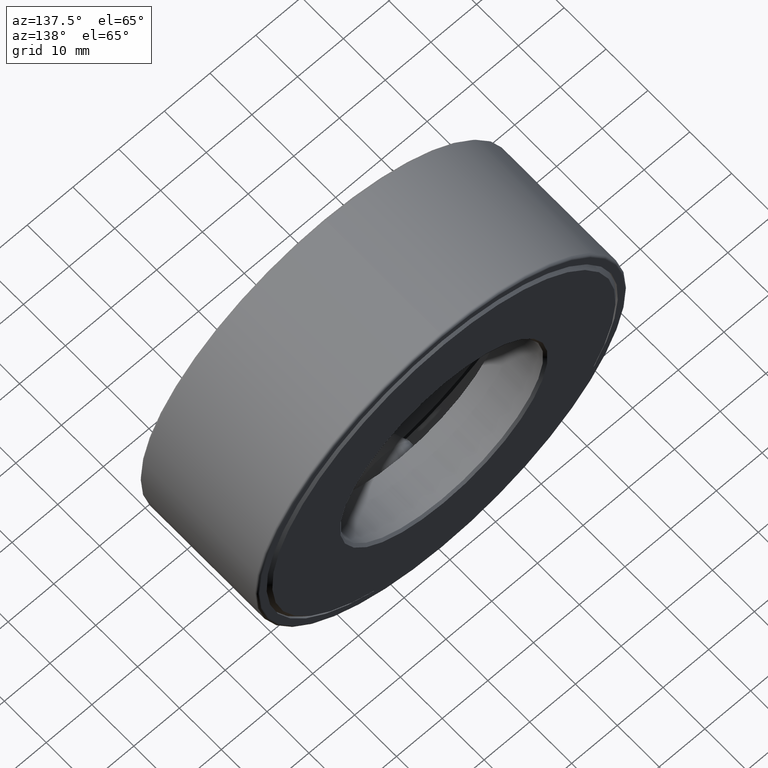
[diagram: clean part render]
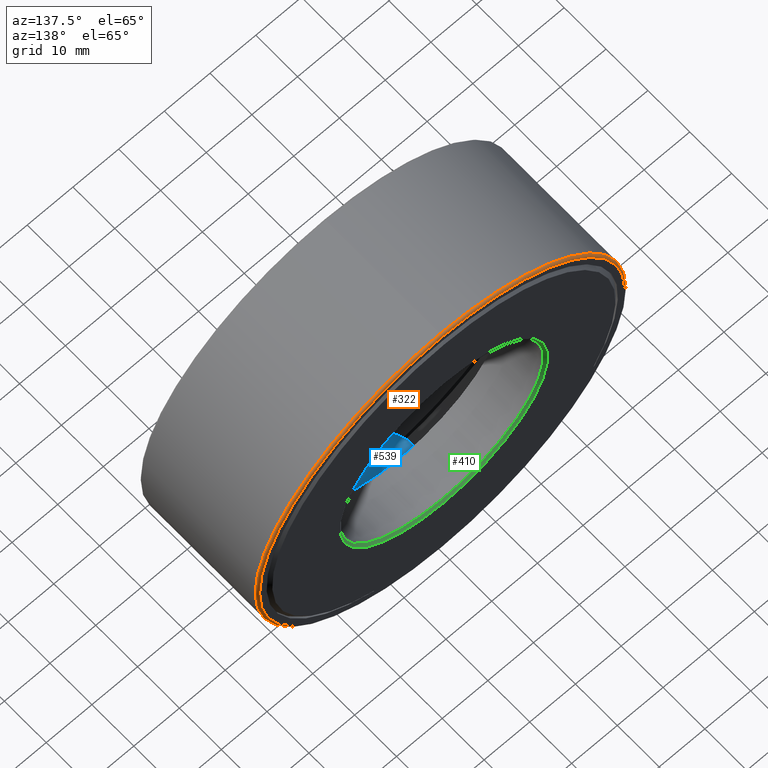
[diagram: same view with three faces highlighted in distinct colors, each labeled with its STEP entity id]
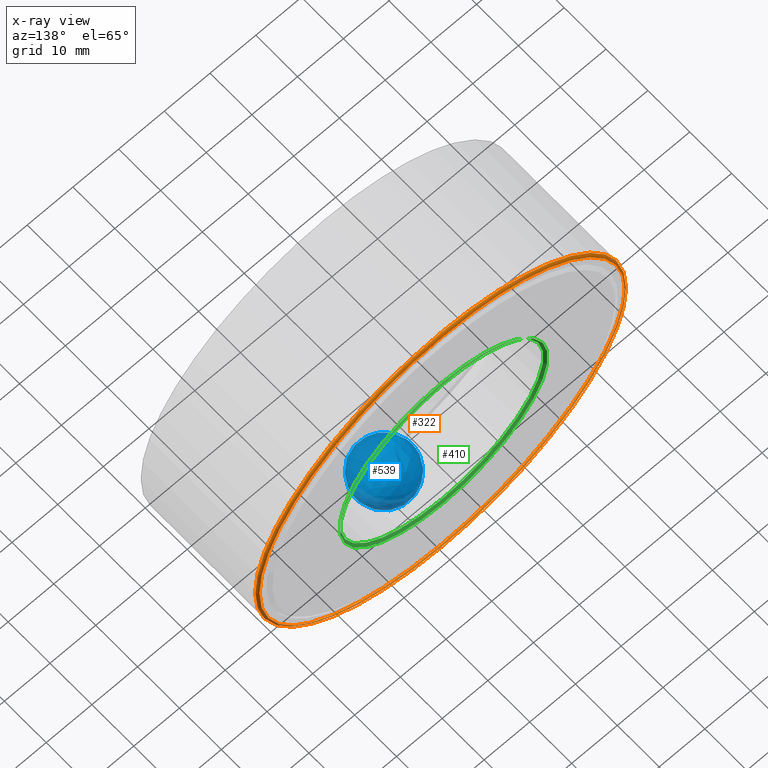
[diagram: x-ray of the same camera — body ghosted, the three highlighted faces saturated]
A machine part, auxiliary view with three faces highlighted in distinct colors.
The next image is the same camera in x-ray (body ghosted, the three faces saturated) — at least one of them is partly hidden behind the body in this view.
Their STEP definitions:

[orange] entity #322 — the highlighted toroidal blend (fillet) surface has major radius 39.9732 mm and minor (blend) radius 0.508 mm.
#94 = CARTESIAN_POINT ( 'NONE',  ( 0.0000000000000000000, 1.109999999999999900, 0.0000000000000000000 ) ) ;
#105 = EDGE_LOOP ( 'NONE', ( #354 ) ) ;
#114 = FACE_OUTER_BOUND ( 'NONE', #370, .T. ) ;
#124 = EDGE_CURVE ( 'NONE', #220, #220, #265, .T. ) ;
#132 = VERTEX_POINT ( 'NONE', #599 ) ;
#140 = FACE_OUTER_BOUND ( 'NONE', #105, .T. ) ;
#147 = DIRECTION ( 'NONE',  ( -0.0000000000000000000, 1.000000000000000000, -0.0000000000000000000 ) ) ;
#156 = ORIENTED_EDGE ( 'NONE', *, *, #124, .T. ) ;
#158 = AXIS2_PLACEMENT_3D ( 'NONE', #94, #147, #471 ) ;
#220 = VERTEX_POINT ( 'NONE', #516 ) ;
#233 = CARTESIAN_POINT ( 'NONE',  ( 0.0000000000000000000, 1.089999999999999900, 0.0000000000000000000 ) ) ;
#253 = AXIS2_PLACEMENT_3D ( 'NONE', #233, #557, #288 ) ;
#260 = TOROIDAL_SURFACE ( 'NONE', #303, 1.573749999999999800, 0.02000000000000005900 ) ;
#265 = CIRCLE ( 'NONE', #253, 1.593750000000000000 ) ;
#288 = DIRECTION ( 'NONE',  ( 0.0000000000000000000, 0.0000000000000000000, 1.000000000000000000 ) ) ;
#303 = AXIS2_PLACEMENT_3D ( 'NONE', #336, #568, #528 ) ;
#322 = ADVANCED_FACE ( 'NONE', ( #140, #114 ), #260, .T. ) ;
#336 = CARTESIAN_POINT ( 'NONE',  ( 0.0000000000000000000, 1.089999999999999900, 0.0000000000000000000 ) ) ;
#354 = ORIENTED_EDGE ( 'NONE', *, *, #377, .F. ) ;
#370 = EDGE_LOOP ( 'NONE', ( #156 ) ) ;
#377 = EDGE_CURVE ( 'NONE', #132, #132, #389, .T. ) ;
#389 = CIRCLE ( 'NONE', #158, 1.573749999999999800 ) ;
#471 = DIRECTION ( 'NONE',  ( 0.0000000000000000000, 0.0000000000000000000, 1.000000000000000000 ) ) ;
#516 = CARTESIAN_POINT ( 'NONE',  ( 0.0000000000000000000, 1.089999999999999900, 1.593750000000000000 ) ) ;
#528 = DIRECTION ( 'NONE',  ( 0.0000000000000000000, 0.0000000000000000000, 1.000000000000000000 ) ) ;
#557 = DIRECTION ( 'NONE',  ( -0.0000000000000000000, 1.000000000000000000, -0.0000000000000000000 ) ) ;
#568 = DIRECTION ( 'NONE',  ( -0.0000000000000000000, 1.000000000000000000, -0.0000000000000000000 ) ) ;
#599 = CARTESIAN_POINT ( 'NONE',  ( 0.0000000000000000000, 1.109999999999999900, 1.573749999999999800 ) ) ;

[blue] entity #539 — the highlighted spherical surface has radius 6.35 mm.
#74 = CARTESIAN_POINT ( 'NONE',  ( -1.377127527073202700E-014, 0.5625000000000000000, -1.314749999999999900 ) ) ;
#204 = SPHERICAL_SURFACE ( 'NONE', #330, 0.2500000000000001100 ) ;
#275 = DIRECTION ( 'NONE',  ( 1.047444401652940000E-014, 0.0000000000000000000, 1.000000000000000000 ) ) ;
#330 = AXIS2_PLACEMENT_3D ( 'NONE', #74, #362, #275 ) ;
#362 = DIRECTION ( 'NONE',  ( 1.000000000000000000, 0.0000000000000000000, -1.047444401652940000E-014 ) ) ;
#539 = ADVANCED_FACE ( 'NONE', ( ), #204, .T. ) ;

[green] entity #410 — the highlighted conical surface has half-angle 45 deg.
#86 = AXIS2_PLACEMENT_3D ( 'NONE', #248, #304, #159 ) ;
#95 = EDGE_CURVE ( 'NONE', #488, #488, #337, .T. ) ;
#110 = ORIENTED_EDGE ( 'NONE', *, *, #314, .F. ) ;
#154 = EDGE_LOOP ( 'NONE', ( #368 ) ) ;
#159 = DIRECTION ( 'NONE',  ( 0.0000000000000000000, 0.0000000000000000000, 1.000000000000000000 ) ) ;
#189 = CARTESIAN_POINT ( 'NONE',  ( 0.0000000000000000000, 1.104999999999999500, 0.8750000000000001100 ) ) ;
#211 = CARTESIAN_POINT ( 'NONE',  ( 0.0000000000000000000, 1.125000000000000000, 0.0000000000000000000 ) ) ;
#221 = DIRECTION ( 'NONE',  ( 0.0000000000000000000, 0.0000000000000000000, 1.000000000000000000 ) ) ;
#240 = CIRCLE ( 'NONE', #343, 0.8750000000000001100 ) ;
#248 = CARTESIAN_POINT ( 'NONE',  ( 0.0000000000000000000, 1.104999999999999500, 0.0000000000000000000 ) ) ;
#281 = EDGE_LOOP ( 'NONE', ( #110 ) ) ;
#304 = DIRECTION ( 'NONE',  ( -0.0000000000000000000, 1.000000000000000000, -0.0000000000000000000 ) ) ;
#314 = EDGE_CURVE ( 'NONE', #602, #602, #240, .T. ) ;
#319 = CONICAL_SURFACE ( 'NONE', #86, 0.8750000000000001100, 0.7853981633974415100 ) ;
#337 = CIRCLE ( 'NONE', #426, 0.8950000000000002400 ) ;
#343 = AXIS2_PLACEMENT_3D ( 'NONE', #384, #563, #429 ) ;
#368 = ORIENTED_EDGE ( 'NONE', *, *, #95, .T. ) ;
#380 = FACE_BOUND ( 'NONE', #281, .T. ) ;
#384 = CARTESIAN_POINT ( 'NONE',  ( 0.0000000000000000000, 1.104999999999999500, 0.0000000000000000000 ) ) ;
#410 = ADVANCED_FACE ( 'NONE', ( #505, #380 ), #319, .F. ) ;
#426 = AXIS2_PLACEMENT_3D ( 'NONE', #211, #547, #221 ) ;
#429 = DIRECTION ( 'NONE',  ( 0.0000000000000000000, 0.0000000000000000000, 1.000000000000000000 ) ) ;
#470 = CARTESIAN_POINT ( 'NONE',  ( 0.0000000000000000000, 1.125000000000000000, 0.8950000000000002400 ) ) ;
#488 = VERTEX_POINT ( 'NONE', #470 ) ;
#505 = FACE_OUTER_BOUND ( 'NONE', #154, .T. ) ;
#547 = DIRECTION ( 'NONE',  ( -0.0000000000000000000, 1.000000000000000000, -0.0000000000000000000 ) ) ;
#563 = DIRECTION ( 'NONE',  ( -0.0000000000000000000, 1.000000000000000000, -0.0000000000000000000 ) ) ;
#602 = VERTEX_POINT ( 'NONE', #189 ) ;